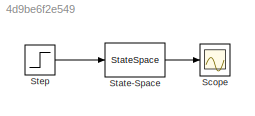
MODEL slx_4d9be6f2e549
KIND model
CONFIG AbsTol = auto
CONFIG EnableMultiTasking = off
CONFIG FixedStep = auto
CONFIG MaxStep = auto
CONFIG MinStep = auto
CONFIG RelTol = 1e-3
CONFIG SampleTimeConstraint = Unconstrained
CONFIG SolverName = VariableStepAuto
CONFIG StartTime = 0.0
CONFIG StopTime = 10
BLOCK [Scope] Scope
  Floating = off
  NumInputPorts = 1
  ScopeSpecificationString = Simulink.scopes.TimeScopeBlockCfg('CurrentConfiguration', extmgr.ConfigurationSet(extmgr.Configuration('Core','General UI',true),extmgr.Configuration('Core','Source UI',true),extmgr.Configuration('Sources','WiredSimulink',true),extmgr.Configuration('Visuals','Time Domain',true,'SerializedDisplays',{struct('MinYLimReal','-3.21151','MaxYLimReal','28.90356','YLabelReal','','MinYLimMag','0.00000','Max...<+1409ch>
BLOCK [StateSpace] State-Space
  A = [0 1 0 0; -1 -0.002*9.8 1 0; 0 0 0 1; 2 0 -2 -0.002*9.8]
  B = [0;1;0;0]
  C = [1 0 0 0; 0 0 1 0]
  D = [0;0]
  InitialCondition = 0
BLOCK [Step] Step
  SampleTime = 0
LINE State-Space:1 -> Scope:1
LINE Step:1 -> State-Space:1
